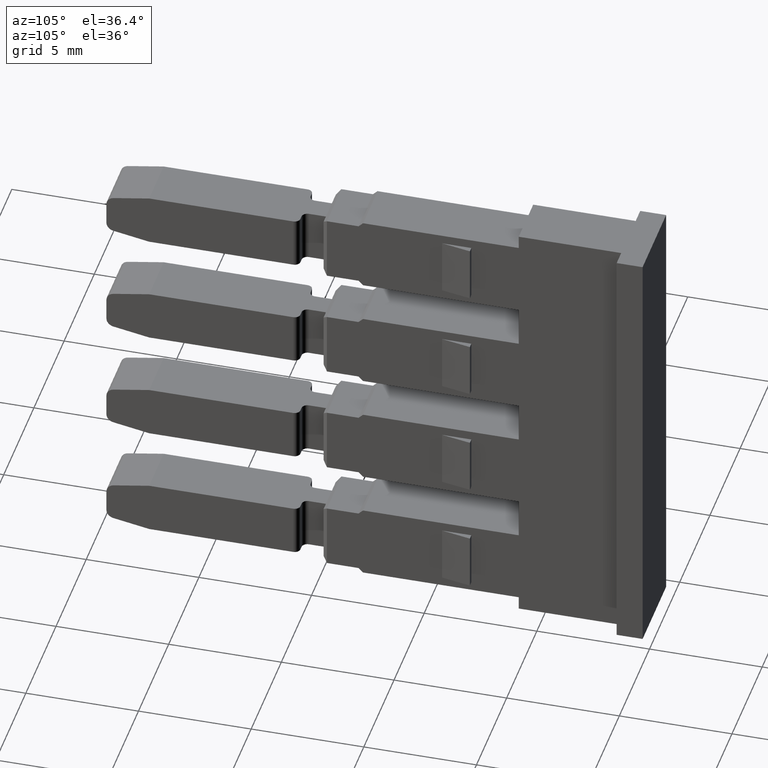
[diagram: clean part render]
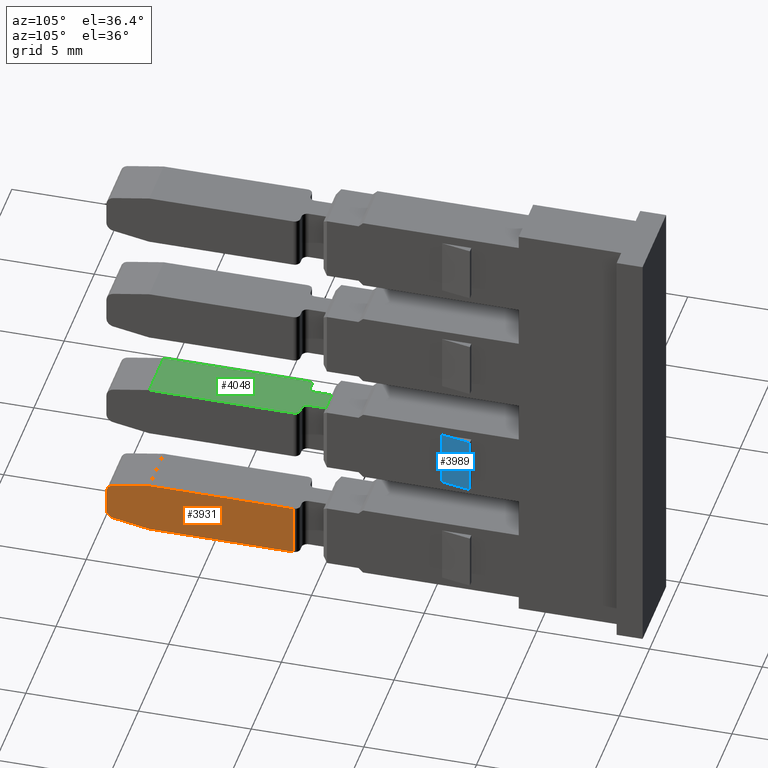
[diagram: same view with three faces highlighted in distinct colors, each labeled with its STEP entity id]
A machine part, auxiliary view with three faces highlighted in distinct colors.
Their STEP definitions:

[orange] entity #3931 — the highlighted planar face has unit normal (1, -0, 0).
#141 = VERTEX_POINT ( 'NONE', #4783 ) ;
#190 = VERTEX_POINT ( 'NONE', #4888 ) ;
#197 = VERTEX_POINT ( 'NONE', #4876 ) ;
#199 = VERTEX_POINT ( 'NONE', #4838 ) ;
#202 = VERTEX_POINT ( 'NONE', #4882 ) ;
#209 = VERTEX_POINT ( 'NONE', #4871 ) ;
#212 = VERTEX_POINT ( 'NONE', #4881 ) ;
#217 = VERTEX_POINT ( 'NONE', #4885 ) ;
#492 = ORIENTED_EDGE ( 'NONE', *, *, #3506, .F. ) ;
#505 = ORIENTED_EDGE ( 'NONE', *, *, #3491, .F. ) ;
#506 = ORIENTED_EDGE ( 'NONE', *, *, #3587, .T. ) ;
#514 = ORIENTED_EDGE ( 'NONE', *, *, #3593, .F. ) ;
#528 = ORIENTED_EDGE ( 'NONE', *, *, #3534, .T. ) ;
#533 = ORIENTED_EDGE ( 'NONE', *, *, #3525, .T. ) ;
#541 = ORIENTED_EDGE ( 'NONE', *, *, #3518, .T. ) ;
#550 = ORIENTED_EDGE ( 'NONE', *, *, #3552, .T. ) ;
#645 = EDGE_LOOP ( 'NONE', ( #514, #533, #550, #505, #528, #506, #492, #541 ) ) ;
#724 = VECTOR ( 'NONE', #5188, 1000.000000000000000 ) ;
#745 = VECTOR ( 'NONE', #5300, 1000.000000000000000 ) ;
#748 = VECTOR ( 'NONE', #3438, 1000.000000000000200 ) ;
#757 = CIRCLE ( 'NONE', #786, 0.3699999999999814500 ) ;
#767 = VECTOR ( 'NONE', #3411, 1000.000000000000000 ) ;
#786 = AXIS2_PLACEMENT_3D ( 'NONE', #5225, #5227, #5294 ) ;
#816 = VECTOR ( 'NONE', #2198, 1000.000000000000000 ) ;
#843 = CIRCLE ( 'NONE', #864, 0.3699999999999814500 ) ;
#853 = VECTOR ( 'NONE', #2383, 1000.000000000000100 ) ;
#864 = AXIS2_PLACEMENT_3D ( 'NONE', #2371, #2388, #2381 ) ;
#1217 = AXIS2_PLACEMENT_3D ( 'NONE', #2632, #2634, #2609 ) ;
#2181 = LINE ( 'NONE', #2214, #816 ) ;
#2198 = DIRECTION ( 'NONE',  ( 0.0000000000000000000, 1.000000000000000000, 0.0000000000000000000 ) ) ;
#2214 = CARTESIAN_POINT ( 'NONE',  ( 1459.232740862447800, 977.9866963102867900, 14.15000000023277200 ) ) ;
#2290 = LINE ( 'NONE', #2430, #853 ) ;
#2371 = CARTESIAN_POINT ( 'NONE',  ( 1459.232740862447800, 966.0646795375009800, 14.79486156848285600 ) ) ;
#2381 = DIRECTION ( 'NONE',  ( 0.0000000000000000000, -1.000000000000000000, 0.0000000000000000000 ) ) ;
#2383 = DIRECTION ( 'NONE',  ( 0.0000000000000000000, -0.9848077530121695000, -0.1736481776671485500 ) ) ;
#2388 = DIRECTION ( 'NONE',  ( -1.000000000000000000, 6.401193638283129800E-015, -1.715124499442839900E-015 ) ) ;
#2430 = CARTESIAN_POINT ( 'NONE',  ( 1459.232740862447800, 967.5911261469319700, 16.44999999989677200 ) ) ;
#2609 = DIRECTION ( 'NONE',  ( 0.0000000000000000000, 0.0000000000000000000, -1.000000000000000000 ) ) ;
#2632 = CARTESIAN_POINT ( 'NONE',  ( 1459.232740862447800, 968.6778926471529300, -7.079151384703684400 ) ) ;
#2634 = DIRECTION ( 'NONE',  ( 1.000000000000000000, -0.0000000000000000000, 0.0000000000000000000 ) ) ;
#2649 = PLANE ( 'NONE',  #1217 ) ;
#2651 = FACE_OUTER_BOUND ( 'NONE', #645, .T. ) ;
#3409 = LINE ( 'NONE', #3424, #748 ) ;
#3411 = DIRECTION ( 'NONE',  ( -0.0000000000000000000, -1.000000000000000000, -0.0000000000000000000 ) ) ;
#3424 = CARTESIAN_POINT ( 'NONE',  ( 1459.232740862447800, 966.0004297117668600, 14.43048269986790900 ) ) ;
#3437 = LINE ( 'NONE', #3439, #767 ) ;
#3438 = DIRECTION ( 'NONE',  ( 0.0000000000000000000, 0.9848077530134311500, -0.1736481776599936900 ) ) ;
#3439 = CARTESIAN_POINT ( 'NONE',  ( 1459.232740862447800, 977.9866963102867900, 16.44999999989675000 ) ) ;
#3491 = EDGE_CURVE ( 'NONE', #141, #199, #5178, .T. ) ;
#3506 = EDGE_CURVE ( 'NONE', #212, #202, #757, .T. ) ;
#3518 = EDGE_CURVE ( 'NONE', #212, #209, #5283, .T. ) ;
#3525 = EDGE_CURVE ( 'NONE', #190, #197, #3409, .T. ) ;
#3534 = EDGE_CURVE ( 'NONE', #141, #217, #3437, .T. ) ;
#3552 = EDGE_CURVE ( 'NONE', #197, #199, #2181, .T. ) ;
#3587 = EDGE_CURVE ( 'NONE', #217, #202, #2290, .T. ) ;
#3593 = EDGE_CURVE ( 'NONE', #190, #209, #843, .T. ) ;
#3931 = ADVANCED_FACE ( 'NONE', ( #2651 ), #2649, .T. ) ;
#4783 = CARTESIAN_POINT ( 'NONE',  ( 1459.232740862447800, 973.9859515064080100, 16.44999999989675400 ) ) ;
#4838 = CARTESIAN_POINT ( 'NONE',  ( 1459.232740862447800, 973.9859515064080100, 14.15000000023527700 ) ) ;
#4871 = CARTESIAN_POINT ( 'NONE',  ( 1459.232740862447800, 965.6946795375009700, 14.79486156848285600 ) ) ;
#4876 = CARTESIAN_POINT ( 'NONE',  ( 1459.232740862447800, 967.5911261469370900, 14.15000000023602100 ) ) ;
#4881 = CARTESIAN_POINT ( 'NONE',  ( 1459.232740862447800, 965.6946795375009700, 15.80513843164502900 ) ) ;
#4882 = CARTESIAN_POINT ( 'NONE',  ( 1459.232740862447800, 966.0004297117641300, 16.16951730025954200 ) ) ;
#4885 = CARTESIAN_POINT ( 'NONE',  ( 1459.232740862447800, 967.5911261469319700, 16.44999999989675700 ) ) ;
#4888 = CARTESIAN_POINT ( 'NONE',  ( 1459.232740862447800, 966.0004297117668600, 14.43048269986790000 ) ) ;
#5178 = LINE ( 'NONE', #5187, #724 ) ;
#5187 = CARTESIAN_POINT ( 'NONE',  ( 1459.232740862447800, 973.9859515064080100, -7.079151384703684400 ) ) ;
#5188 = DIRECTION ( 'NONE',  ( 0.0000000000000000000, 0.0000000000000000000, -1.000000000000000000 ) ) ;
#5225 = CARTESIAN_POINT ( 'NONE',  ( 1459.232740862447800, 966.0646795375009800, 15.80513843164502900 ) ) ;
#5227 = DIRECTION ( 'NONE',  ( -1.000000000000000000, 6.401193638283129800E-015, -1.715124499442839900E-015 ) ) ;
#5283 = LINE ( 'NONE', #5304, #745 ) ;
#5294 = DIRECTION ( 'NONE',  ( 0.0000000000000000000, -1.000000000000000000, 0.0000000000000000000 ) ) ;
#5300 = DIRECTION ( 'NONE',  ( -0.0000000000000000000, -0.0000000000000000000, -1.000000000000000000 ) ) ;
#5304 = CARTESIAN_POINT ( 'NONE',  ( 1459.232740862447800, 965.6946795375009700, 15.80513843164503900 ) ) ;

[blue] entity #3989 — the highlighted planar face has unit normal (-0.982, 0.1888, -0).
#244 = VERTEX_POINT ( 'NONE', #4944 ) ;
#256 = VERTEX_POINT ( 'NONE', #4938 ) ;
#283 = VERTEX_POINT ( 'NONE', #4896 ) ;
#354 = VERTEX_POINT ( 'NONE', #4987 ) ;
#654 = EDGE_LOOP ( 'NONE', ( #4175, #4198, #4160, #4195 ) ) ;
#868 = VECTOR ( 'NONE', #2534, 1000.000000000000000 ) ;
#883 = VECTOR ( 'NONE', #2591, 1000.000000000000000 ) ;
#894 = VECTOR ( 'NONE', #2546, 1000.000000000000000 ) ;
#913 = VECTOR ( 'NONE', #2743, 1000.000000000000100 ) ;
#1296 = AXIS2_PLACEMENT_3D ( 'NONE', #1543, #1546, #1548 ) ;
#1542 = PLANE ( 'NONE',  #1296 ) ;
#1543 = CARTESIAN_POINT ( 'NONE',  ( 1459.489907072214900, 981.8926795374925400, 22.97382022962177600 ) ) ;
#1546 = DIRECTION ( 'NONE',  ( -0.9820064469806347700, 0.1888473936501898500, -1.684263315827307500E-015 ) ) ;
#1548 = DIRECTION ( 'NONE',  ( -0.1888473936501898200, -0.9820064469806346600, 0.0000000000000000000 ) ) ;
#1574 = FACE_OUTER_BOUND ( 'NONE', #654, .T. ) ;
#2458 = CARTESIAN_POINT ( 'NONE',  ( 1459.239907072214000, 980.5926795374925900, -30.13084736897824800 ) ) ;
#2464 = LINE ( 'NONE', #2601, #883 ) ;
#2510 = LINE ( 'NONE', #2458, #868 ) ;
#2534 = DIRECTION ( 'NONE',  ( -1.715124499442844000E-015, 1.097884403469707200E-029, 1.000000000000000000 ) ) ;
#2543 = CARTESIAN_POINT ( 'NONE',  ( 1459.489907072214900, 981.8926795374925400, 21.65000000013441900 ) ) ;
#2546 = DIRECTION ( 'NONE',  ( -0.1888473936502520500, -0.9820064469806228900, 0.0000000000000000000 ) ) ;
#2591 = DIRECTION ( 'NONE',  ( 1.653957434555396800E-015, -3.180687374146135400E-016, -1.000000000000000000 ) ) ;
#2601 = CARTESIAN_POINT ( 'NONE',  ( 1459.489907072214900, 981.8926795374925400, 22.97382022962177600 ) ) ;
#2628 = LINE ( 'NONE', #2543, #894 ) ;
#2743 = DIRECTION ( 'NONE',  ( -0.1888473936501898200, -0.9820064469806346600, 0.0000000000000000000 ) ) ;
#2763 = CARTESIAN_POINT ( 'NONE',  ( 1459.489907072214900, 981.8926795374925400, 19.15000000013441600 ) ) ;
#2809 = LINE ( 'NONE', #2763, #913 ) ;
#3606 = EDGE_CURVE ( 'NONE', #244, #256, #2510, .T. ) ;
#3616 = EDGE_CURVE ( 'NONE', #283, #354, #2464, .T. ) ;
#3625 = EDGE_CURVE ( 'NONE', #283, #256, #2628, .T. ) ;
#3648 = EDGE_CURVE ( 'NONE', #354, #244, #2809, .T. ) ;
#3989 = ADVANCED_FACE ( 'NONE', ( #1574 ), #1542, .F. ) ;
#4160 = ORIENTED_EDGE ( 'NONE', *, *, #3616, .F. ) ;
#4175 = ORIENTED_EDGE ( 'NONE', *, *, #3606, .F. ) ;
#4195 = ORIENTED_EDGE ( 'NONE', *, *, #3625, .T. ) ;
#4198 = ORIENTED_EDGE ( 'NONE', *, *, #3648, .F. ) ;
#4896 = CARTESIAN_POINT ( 'NONE',  ( 1459.489907072214900, 981.8926795374925400, 21.65000000013441900 ) ) ;
#4938 = CARTESIAN_POINT ( 'NONE',  ( 1459.239907072214500, 980.5926795374913400, 21.65000000013441900 ) ) ;
#4944 = CARTESIAN_POINT ( 'NONE',  ( 1459.239907072214700, 980.5926795374925900, 19.15000000013441600 ) ) ;
#4987 = CARTESIAN_POINT ( 'NONE',  ( 1459.489907072214900, 981.8926795374925400, 19.15000000013441600 ) ) ;

[green] entity #4048 — the highlighted planar face has unit normal (0, -0, -1).
#78 = EDGE_LOOP ( 'NONE', ( #4769, #4700, #4702, #4772, #4662, #4724, #4746, #4715, #4716, #4676, #4669, #4672 ) ) ;
#342 = VERTEX_POINT ( 'NONE', #4976 ) ;
#345 = VERTEX_POINT ( 'NONE', #4974 ) ;
#363 = VERTEX_POINT ( 'NONE', #5019 ) ;
#384 = VERTEX_POINT ( 'NONE', #5063 ) ;
#394 = VERTEX_POINT ( 'NONE', #5027 ) ;
#398 = VERTEX_POINT ( 'NONE', #5044 ) ;
#401 = VERTEX_POINT ( 'NONE', #5051 ) ;
#404 = VERTEX_POINT ( 'NONE', #5069 ) ;
#405 = VERTEX_POINT ( 'NONE', #5039 ) ;
#410 = VERTEX_POINT ( 'NONE', #5045 ) ;
#420 = VERTEX_POINT ( 'NONE', #5074 ) ;
#435 = VERTEX_POINT ( 'NONE', #5081 ) ;
#869 = AXIS2_PLACEMENT_3D ( 'NONE', #1877, #1854, #1850 ) ;
#1073 = VECTOR ( 'NONE', #3287, 1000.000000000000000 ) ;
#1074 = VECTOR ( 'NONE', #3221, 1000.000000000000000 ) ;
#1081 = VECTOR ( 'NONE', #3193, 1000.000000000000000 ) ;
#1130 = CIRCLE ( 'NONE', #1150, 0.2500000000000834900 ) ;
#1148 = CIRCLE ( 'NONE', #1157, 0.2500000000000834900 ) ;
#1150 = AXIS2_PLACEMENT_3D ( 'NONE', #2150, #2131, #2187 ) ;
#1155 = VECTOR ( 'NONE', #2094, 1000.000000000000000 ) ;
#1157 = AXIS2_PLACEMENT_3D ( 'NONE', #2061, #2098, #2070 ) ;
#1166 = CIRCLE ( 'NONE', #1187, 0.2500000000000834900 ) ;
#1187 = AXIS2_PLACEMENT_3D ( 'NONE', #3386, #3370, #3371 ) ;
#1189 = VECTOR ( 'NONE', #2174, 1000.000000000000000 ) ;
#1199 = VECTOR ( 'NONE', #2625, 1000.000000000000000 ) ;
#1210 = VECTOR ( 'NONE', #2287, 1000.000000000000000 ) ;
#1236 = VECTOR ( 'NONE', #2348, 1000.000000000000000 ) ;
#1242 = CIRCLE ( 'NONE', #1244, 0.2500000000000834900 ) ;
#1244 = AXIS2_PLACEMENT_3D ( 'NONE', #2207, #2211, #2220 ) ;
#1850 = DIRECTION ( 'NONE',  ( 0.0000000000000000000, 1.000000000000000000, -2.254902393929530300E-015 ) ) ;
#1853 = FACE_OUTER_BOUND ( 'NONE', #78, .T. ) ;
#1854 = DIRECTION ( 'NONE',  ( 1.715124499442825100E-015, -2.254902393929530300E-015, -1.000000000000000000 ) ) ;
#1861 = PLANE ( 'NONE',  #869 ) ;
#1877 = CARTESIAN_POINT ( 'NONE',  ( 1433.529907072213700, 984.0446795374959900, 21.54999999989670600 ) ) ;
#2048 = LINE ( 'NONE', #2108, #1155 ) ;
#2061 = CARTESIAN_POINT ( 'NONE',  ( 1457.289907072211700, 974.4859515064079000, 21.54999999990809900 ) ) ;
#2070 = DIRECTION ( 'NONE',  ( 1.000000000000000000, 0.0000000000000000000, 0.0000000000000000000 ) ) ;
#2088 = LINE ( 'NONE', #2090, #1189 ) ;
#2090 = CARTESIAN_POINT ( 'NONE',  ( 1433.529907072213700, 975.2826795374918400, 21.54999999989672700 ) ) ;
#2094 = DIRECTION ( 'NONE',  ( -1.000000000000000000, 6.401193638283129800E-015, -0.0000000000000000000 ) ) ;
#2098 = DIRECTION ( 'NONE',  ( -1.715124499442840100E-015, 1.097884403469704600E-029, 1.000000000000000000 ) ) ;
#2108 = CARTESIAN_POINT ( 'NONE',  ( 1467.973266671876400, 974.2359515064081300, 21.54999999989676200 ) ) ;
#2122 = LINE ( 'NONE', #2224, #1210 ) ;
#2131 = DIRECTION ( 'NONE',  ( -1.715124499442840100E-015, 1.097884403469704600E-029, 1.000000000000000000 ) ) ;
#2150 = CARTESIAN_POINT ( 'NONE',  ( 1458.779907072213700, 974.4859515064079000, 21.54999999989674800 ) ) ;
#2174 = DIRECTION ( 'NONE',  ( 1.000000000000000000, 3.867438339680813900E-030, 1.715124499442825100E-015 ) ) ;
#2187 = DIRECTION ( 'NONE',  ( -1.000000000000000000, 0.0000000000000000000, 0.0000000000000000000 ) ) ;
#2207 = CARTESIAN_POINT ( 'NONE',  ( 1457.087073281980100, 973.9859515064080100, 21.54999999989676200 ) ) ;
#2211 = DIRECTION ( 'NONE',  ( -1.818718816987044900E-027, 1.164197132112329100E-041, -1.000000000000000000 ) ) ;
#2220 = DIRECTION ( 'NONE',  ( -1.000000000000000000, 0.0000000000000000000, 0.0000000000000000000 ) ) ;
#2224 = CARTESIAN_POINT ( 'NONE',  ( 1457.539907072211700, 984.0446795374959900, 21.54999999989674800 ) ) ;
#2287 = DIRECTION ( 'NONE',  ( 0.0000000000000000000, 1.000000000000000000, -2.254902393929530300E-015 ) ) ;
#2335 = LINE ( 'NONE', #2345, #1236 ) ;
#2345 = CARTESIAN_POINT ( 'NONE',  ( 1456.837073281979900, 968.6778926471499700, 21.54999999989676600 ) ) ;
#2348 = DIRECTION ( 'NONE',  ( 1.280238727656576100E-014, 1.000000000000000000, -0.0000000000000000000 ) ) ;
#2625 = DIRECTION ( 'NONE',  ( 1.000000000000000000, 3.867438339680813900E-030, 1.715124499442825100E-015 ) ) ;
#2664 = LINE ( 'NONE', #2666, #1199 ) ;
#2666 = CARTESIAN_POINT ( 'NONE',  ( 1433.529907072213700, 974.2359515064082400, 21.54999999989672700 ) ) ;
#3183 = CARTESIAN_POINT ( 'NONE',  ( 1433.529907072213700, 967.5911261469319700, 21.54999999989674500 ) ) ;
#3189 = LINE ( 'NONE', #3183, #1081 ) ;
#3193 = DIRECTION ( 'NONE',  ( -1.000000000000000000, -3.867438339680813900E-030, -1.715124499442825100E-015 ) ) ;
#3213 = CARTESIAN_POINT ( 'NONE',  ( 1458.529907072213700, 984.0446795374959900, 21.54999999989674800 ) ) ;
#3217 = LINE ( 'NONE', #3213, #1074 ) ;
#3221 = DIRECTION ( 'NONE',  ( -0.0000000000000000000, -1.000000000000000000, 2.254902393929530300E-015 ) ) ;
#3278 = CARTESIAN_POINT ( 'NONE',  ( 1459.232740862447800, 984.0446795374959900, 21.54999999989675200 ) ) ;
#3287 = DIRECTION ( 'NONE',  ( -0.0000000000000000000, -1.000000000000000000, 2.254902393929530300E-015 ) ) ;
#3294 = LINE ( 'NONE', #3278, #1073 ) ;
#3370 = DIRECTION ( 'NONE',  ( 0.0000000000000000000, 0.0000000000000000000, -1.000000000000000000 ) ) ;
#3371 = DIRECTION ( 'NONE',  ( -1.000000000000000000, 0.0000000000000000000, 0.0000000000000000000 ) ) ;
#3386 = CARTESIAN_POINT ( 'NONE',  ( 1458.982740862447800, 973.9859515064080100, 21.54999999989676200 ) ) ;
#3786 = EDGE_CURVE ( 'NONE', #410, #384, #3189, .T. ) ;
#3800 = EDGE_CURVE ( 'NONE', #404, #401, #3217, .T. ) ;
#3817 = EDGE_CURVE ( 'NONE', #345, #410, #3294, .T. ) ;
#3849 = EDGE_CURVE ( 'NONE', #394, #345, #1166, .T. ) ;
#3857 = EDGE_CURVE ( 'NONE', #394, #405, #2048, .T. ) ;
#3862 = EDGE_CURVE ( 'NONE', #435, #420, #1148, .T. ) ;
#3871 = EDGE_CURVE ( 'NONE', #363, #404, #2088, .T. ) ;
#3878 = EDGE_CURVE ( 'NONE', #401, #405, #1130, .T. ) ;
#3885 = EDGE_CURVE ( 'NONE', #420, #363, #2122, .T. ) ;
#3892 = EDGE_CURVE ( 'NONE', #342, #398, #1242, .T. ) ;
#3907 = EDGE_CURVE ( 'NONE', #384, #342, #2335, .T. ) ;
#3936 = EDGE_CURVE ( 'NONE', #398, #435, #2664, .T. ) ;
#4048 = ADVANCED_FACE ( 'NONE', ( #1853 ), #1861, .F. ) ;
#4662 = ORIENTED_EDGE ( 'NONE', *, *, #3892, .F. ) ;
#4669 = ORIENTED_EDGE ( 'NONE', *, *, #3878, .F. ) ;
#4672 = ORIENTED_EDGE ( 'NONE', *, *, #3800, .F. ) ;
#4676 = ORIENTED_EDGE ( 'NONE', *, *, #3857, .T. ) ;
#4700 = ORIENTED_EDGE ( 'NONE', *, *, #3885, .F. ) ;
#4702 = ORIENTED_EDGE ( 'NONE', *, *, #3862, .F. ) ;
#4715 = ORIENTED_EDGE ( 'NONE', *, *, #3817, .F. ) ;
#4716 = ORIENTED_EDGE ( 'NONE', *, *, #3849, .F. ) ;
#4724 = ORIENTED_EDGE ( 'NONE', *, *, #3907, .F. ) ;
#4746 = ORIENTED_EDGE ( 'NONE', *, *, #3786, .F. ) ;
#4769 = ORIENTED_EDGE ( 'NONE', *, *, #3871, .F. ) ;
#4772 = ORIENTED_EDGE ( 'NONE', *, *, #3936, .F. ) ;
#4974 = CARTESIAN_POINT ( 'NONE',  ( 1459.232740862447800, 973.9859515064080100, 21.54999999989677000 ) ) ;
#4976 = CARTESIAN_POINT ( 'NONE',  ( 1456.837073281979900, 973.9859515064080100, 21.54999999989676200 ) ) ;
#5019 = CARTESIAN_POINT ( 'NONE',  ( 1457.539907072211700, 975.2826795374917300, 21.54999999989677300 ) ) ;
#5027 = CARTESIAN_POINT ( 'NONE',  ( 1458.982740862447800, 974.2359515064082400, 21.54999999989676200 ) ) ;
#5039 = CARTESIAN_POINT ( 'NONE',  ( 1458.779907072213700, 974.2359515064081300, 21.54999999989674800 ) ) ;
#5044 = CARTESIAN_POINT ( 'NONE',  ( 1457.087073281980100, 974.2359515064082400, 21.54999999989676600 ) ) ;
#5045 = CARTESIAN_POINT ( 'NONE',  ( 1459.232740862447800, 967.5911261469319700, 21.54999999989678000 ) ) ;
#5051 = CARTESIAN_POINT ( 'NONE',  ( 1458.529907072213700, 974.4859515064079000, 21.54999999989675900 ) ) ;
#5063 = CARTESIAN_POINT ( 'NONE',  ( 1456.837073281979900, 967.5911261469319700, 21.54999999989676600 ) ) ;
#5069 = CARTESIAN_POINT ( 'NONE',  ( 1458.529907072213700, 975.2826795374918400, 21.54999999989677000 ) ) ;
#5074 = CARTESIAN_POINT ( 'NONE',  ( 1457.539907072211700, 974.4859515064079000, 21.54999999990243300 ) ) ;
#5081 = CARTESIAN_POINT ( 'NONE',  ( 1457.289907072211700, 974.2359515064081300, 21.54999999990243300 ) ) ;